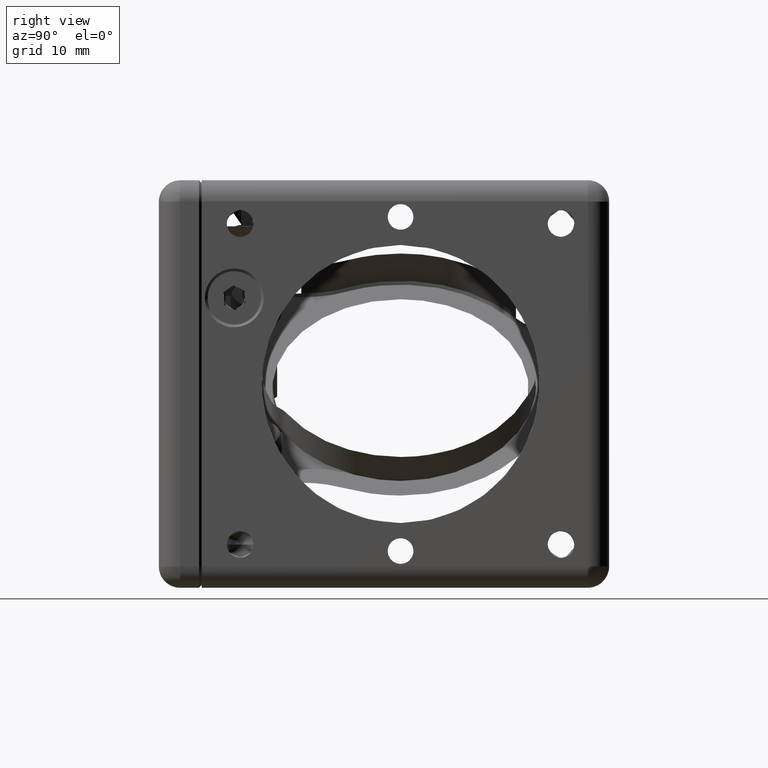
[diagram: clean part render]
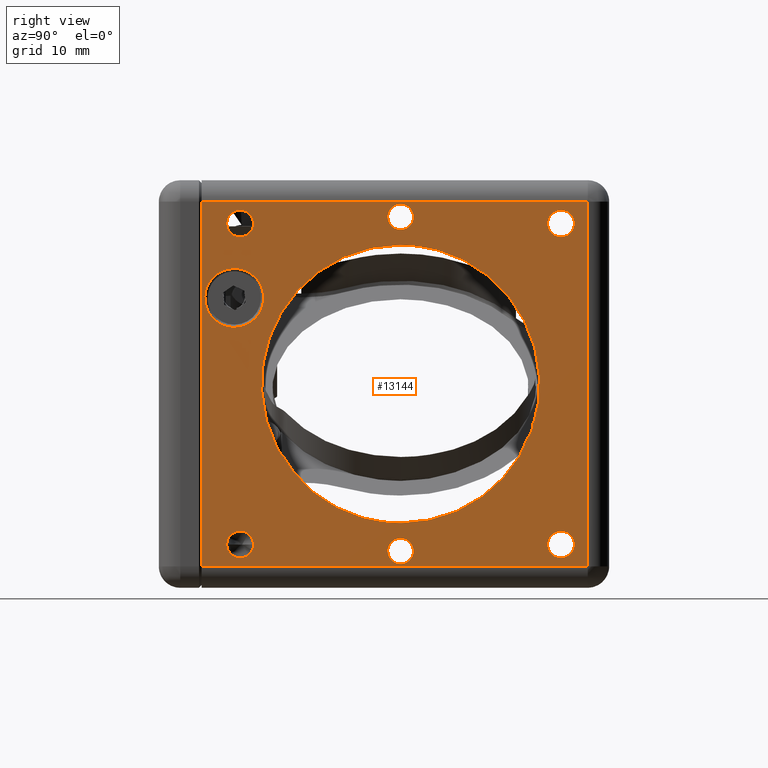
[diagram: same view with one face highlighted and labeled with its STEP entity id]
A machine part, right view. The second image highlights one B-rep face of the part: STEP entity #13144.
In plain terms, the highlighted face is a freeform B-spline surface patch.
Its self-contained STEP definition (entity closure, byte-faithful):
#40 = CARTESIAN_POINT ( 'NONE',  ( 19.04999986707461090, 3.098019014324461473, 6.112920640241477521 ) ) ;
#78 = ORIENTED_EDGE ( 'NONE', *, *, #1977, .F. ) ;
#80 = CARTESIAN_POINT ( 'NONE',  ( 19.05000000000000071, 19.40000000000000213, 15.62000000000000099 ) ) ;
#114 = CARTESIAN_POINT ( 'NONE',  ( 19.05000000000000071, 4.897910972433226817, 5.300000000000000711 ) ) ;
#176 =( BOUNDED_CURVE ( )  B_SPLINE_CURVE ( 3, ( #7310, #7550, #8832, #12180 ),
 .UNSPECIFIED., .F., .T. ) 
 B_SPLINE_CURVE_WITH_KNOTS ( ( 4, 4 ),
 ( 0.000000000000000000, 1.000000000000000000 ),
 .UNSPECIFIED. ) 
 CURVE ( )  GEOMETRIC_REPRESENTATION_ITEM ( )  RATIONAL_B_SPLINE_CURVE ( ( 1.000000000000000000, 0.3333333333331660042, 0.3333333333331660042, 1.000000000000000000 ) ) 
 REPRESENTATION_ITEM ( '' )  );
#188 = CARTESIAN_POINT ( 'NONE',  ( 19.04943811126134889, 4.380161409340550094, 5.377380616878197905 ) ) ;
#378 = CARTESIAN_POINT ( 'NONE',  ( 19.04861679086999970, 6.082759954205564590, 5.502779833323993230 ) ) ;
#386 = VERTEX_POINT ( 'NONE', #13449 ) ;
#421 = CARTESIAN_POINT ( 'NONE',  ( 19.04864654824011083, 3.995954247357201172, 5.511487269830947611 ) ) ;
#455 = CARTESIAN_POINT ( 'NONE',  ( 19.04863584893482908, 7.586728845092803653, 6.991693103098558737 ) ) ;
#531 = CARTESIAN_POINT ( 'NONE',  ( 19.04997547945868774, 6.869752765367521441, 5.987233722678755754 ) ) ;
#591 = CARTESIAN_POINT ( 'NONE',  ( 19.04928577054121419, 2.774380037230607332, 9.592874831375343803 ) ) ;
#611 = CARTESIAN_POINT ( 'NONE',  ( 19.04997547433630700, 7.796009776265294455, 7.890530415392072783 ) ) ;
#661 = VERTEX_POINT ( 'NONE', #4349 ) ;
#674 = B_SPLINE_CURVE_WITH_KNOTS ( 'NONE', 3,
 ( #11725, #4243, #4321, #2099, #10456, #9175, #6864, #7894, #12767, #7976, #10216, #12848, #13873, #10379, #11414, #3268, #14032, #831, #11646, #15068, #2967, #5657, #4165, #5424, #15377, #10297, #7817, #15224, #1857, #754, #6703, #4473, #14182, #15146, #8135, #12684, #15299, #4395, #1778, #6627, #11487, #11568, #5505, #9253, #591, #3192, #10534, #11959, #15625, #1063, #4796, #8451, #9409, #8211, #13319, #4550, #13080, #2412, #15702, #1224, #12039, #14578, #4711, #7250, #2330, #902, #14260, #1141, #8289, #3346, #15540, #4628, #5981, #5898, #12119, #9733, #5819, #9653, #2180, #11804, #5740, #4877, #9570, #14419, #7021, #11883, #13395, #15458, #6059, #3426, #984, #14342, #10697, #9490, #3590, #13158, #2255, #10931, #3506, #13237, #40, #7095, #10776, #3671, #14499, #8535, #10855, #6942, #10614, #8368, #7171, #8924, #7567, #14970, #5178, #3908, #2795, #1452, #8693, #13633, #13711, #2567, #421, #14741, #8848, #188, #11167, #114, #13482 ),
 .UNSPECIFIED., .F., .F.,
 ( 4, 2, 2, 2, 2, 2, 2, 2, 2, 1, 1, 2, 2, 2, 2, 1, 1, 1, 1, 2, 2, 2, 2, 2, 2, 2, 2, 2, 2, 1, 1, 2, 2, 2, 2, 1, 1, 1, 1, 2, 2, 2, 2, 2, 2, 2, 2, 2, 2, 1, 1, 2, 2, 2, 2, 1, 1, 1, 1, 2, 2, 2, 2, 1, 2, 2, 2, 2, 2, 1, 1, 2, 2, 2, 4 ),
 ( 0.000000000000000000, 0.03124999999998293726, 0.04687499999997425670, 0.05468749999996978806, 0.05859374999996758843, 0.06249999999996539574, 0.09374999999994695909, 0.1093749999999377304, 0.1171874999999331091, 0.1210937499999310968, 0.1230468749999307498, 0.1240234374999309858, 0.1249999999999312356, 0.1874999999999289735, 0.2187499999999278633, 0.2343749999999274747, 0.2421874999999273081, 0.2460937499999271971, 0.2480468749999271416, 0.2490234374999273637, 0.2499999999999276135, 0.2812499999999271139, 0.2968749999999268918, 0.3046874999999267808, 0.3085937499999268918, 0.3124999999999269473, 0.3437499999999285571, 0.3593749999999296119, 0.3671874999999306111, 0.3710937499999311107, 0.3730468749999306111, 0.3740234374999309996, 0.3749999999999313882, 0.4374999999999524825, 0.4687499999999629741, 0.4843749999999683031, 0.4921874999999706346, 0.4960937499999717448, 0.4980468749999723554, 0.4990234374999724110, 0.4999999999999723554, 0.5312499999999710232, 0.5468749999999703570, 0.5546874999999700240, 0.5585937499999698019, 0.5624999999999695799, 0.5937499999999660272, 0.6093749999999642508, 0.6171874999999636957, 0.6210937499999630296, 0.6230468749999632516, 0.6240234374999633626, 0.6249999999999634737, 0.6874999999999774625, 0.7187499999999845679, 0.7343749999999881206, 0.7421874999999900080, 0.7460937499999908962, 0.7480468749999914513, 0.7490234374999916733, 0.7499999999999918954, 0.7812499999999943379, 0.7968749999999955591, 0.8046874999999962252, 0.8085937499999963363, 0.8124999999999965583, 0.8437499999999985567, 0.8593749999999995559, 0.8671874999999998890, 0.8710937500000002220, 0.8730468750000002220, 0.8740234375000005551, 0.8750000000000007772, 0.9375000000000003331, 1.000000000000000000 ),
 .UNSPECIFIED. ) ;
#688 = CARTESIAN_POINT ( 'NONE',  ( 19.04937108888617558, 7.758480758903401941, 8.522679767899981940 ) ) ;
#719 = CARTESIAN_POINT ( 'NONE',  ( 19.05000000000000071, 4.349999999999999645, 15.00000000000000000 ) ) ;
#754 = CARTESIAN_POINT ( 'NONE',  ( 19.04999388760300150, 3.167407539884830481, 10.05483648186934964 ) ) ;
#768 = CARTESIAN_POINT ( 'NONE',  ( 19.04878263641271374, 7.682922672656817831, 8.844705857789028514 ) ) ;
#831 = CARTESIAN_POINT ( 'NONE',  ( 19.04861679086955917, 4.017240046087132477, 10.59722016679437573 ) ) ;
#902 = CARTESIAN_POINT ( 'NONE',  ( 19.04999962390708745, 2.300062368217583586, 8.069944392025167446 ) ) ;
#910 =( BOUNDED_CURVE ( )  B_SPLINE_CURVE ( 3, ( #11008, #3754, #8617, #6608 ),
 .UNSPECIFIED., .F., .F. ) 
 B_SPLINE_CURVE_WITH_KNOTS ( ( 4, 4 ),
 ( 0.000000000000000000, 1.000000000000000000 ),
 .UNSPECIFIED. ) 
 CURVE ( )  GEOMETRIC_REPRESENTATION_ITEM ( )  RATIONAL_B_SPLINE_CURVE ( ( 1.000000000000000000, 0.3333333333333329818, 0.3333333333333329818, 1.000000000000000000 ) ) 
 REPRESENTATION_ITEM ( '' )  );
#920 = CARTESIAN_POINT ( 'NONE',  ( 19.04999998250280413, 6.964226587509305233, 10.02486068427187149 ) ) ;
#939 = EDGE_CURVE ( 'NONE', #11145, #14442, #6646, .T. ) ;
#984 = CARTESIAN_POINT ( 'NONE',  ( 19.04864444234357279, 2.509449107466668494, 7.000878356694053117 ) ) ;
#1062 = ORIENTED_EDGE ( 'NONE', *, *, #13733, .F. ) ;
#1063 = CARTESIAN_POINT ( 'NONE',  ( 19.04859953023099450, 2.531307466915591942, 9.150553403581433543 ) ) ;
#1141 = CARTESIAN_POINT ( 'NONE',  ( 19.04999997488004126, 2.300004453179722574, 8.055698450661880727 ) ) ;
#1160 = CARTESIAN_POINT ( 'NONE',  ( 19.04999847815494363, 7.020512174068946010, 9.968272433880635219 ) ) ;
#1211 = ORIENTED_EDGE ( 'NONE', *, *, #13106, .F. ) ;
#1217 = EDGE_CURVE ( 'NONE', #2929, #4570, #1698, .T. ) ;
#1219 = CARTESIAN_POINT ( 'NONE',  ( 19.05000000000000071, 21.80000000000000071, -15.62000000000000099 ) ) ;
#1224 = CARTESIAN_POINT ( 'NONE',  ( 19.04977535610967365, 2.336315488206166080, 8.503131860456127455 ) ) ;
#1257 = CARTESIAN_POINT ( 'NONE',  ( 19.04863673309368366, 6.096152584884070080, 5.508233915722216878 ) ) ;
#1452 = CARTESIAN_POINT ( 'NONE',  ( 19.04859949369893357, 3.956655680808667253, 5.528184882426384839 ) ) ;
#1488 = CARTESIAN_POINT ( 'NONE',  ( 19.04897851526573405, 5.727874834933961878, 5.381990796689088974 ) ) ;
#1535 = B_SPLINE_SURFACE_WITH_KNOTS ( 'NONE', 1, 1, ( 
 ( #5678, #9062 ),
 ( #4207, #13920 ) ),
 .UNSPECIFIED., .F., .F., .F.,
 ( 2, 2 ),
 ( 2, 2 ),
 ( 0.000000000000000000, 1.000000000000000000 ),
 ( 0.000000000000000000, 1.000000000000000000 ),
 .UNSPECIFIED. ) ;
#1587 = FACE_BOUND ( 'NONE', #7717, .T. ) ;
#1638 = CARTESIAN_POINT ( 'NONE',  ( 19.04864201210133245, 7.591060604763359976, 9.097876480720207937 ) ) ;
#1667 = EDGE_CURVE ( 'NONE', #4354, #661, #2636, .T. ) ;
#1698 =( BOUNDED_CURVE ( )  B_SPLINE_CURVE ( 3, ( #9779, #11211, #4032, #14855 ),
 .UNSPECIFIED., .F., .T. ) 
 B_SPLINE_CURVE_WITH_KNOTS ( ( 4, 4 ),
 ( 0.000000000000000000, 1.000000000000000000 ),
 .UNSPECIFIED. ) 
 CURVE ( )  GEOMETRIC_REPRESENTATION_ITEM ( )  RATIONAL_B_SPLINE_CURVE ( ( 1.000000000000000000, 0.3333333333333329818, 0.3333333333333329818, 1.000000000000000000 ) ) 
 REPRESENTATION_ITEM ( '' )  );
#1713 = CARTESIAN_POINT ( 'NONE',  ( 19.04999997508845766, 6.990150368593027075, 6.101070544126463879 ) ) ;
#1752 = CARTESIAN_POINT ( 'NONE',  ( 19.05000000000000071, 1.999999999999944933, 17.05000000000000071 ) ) ;
#1778 = CARTESIAN_POINT ( 'NONE',  ( 19.04967235771179546, 2.903468310556810650, 9.769343564325705387 ) ) ;
#1796 = CARTESIAN_POINT ( 'NONE',  ( 19.04999848077137869, 6.963685059447638714, 6.075014362308000848 ) ) ;
#1799 = EDGE_LOOP ( 'NONE', ( #4380, #3040 ) ) ;
#1857 = CARTESIAN_POINT ( 'NONE',  ( 19.04997547945506398, 3.230247234634628040, 10.11276627731843369 ) ) ;
#1875 = CARTESIAN_POINT ( 'NONE',  ( 19.04999998089872548, 7.799999980898670415, 8.096811197499311774 ) ) ;
#1883 = CARTESIAN_POINT ( 'NONE',  ( 19.05000000000000071, 6.849999999999890399, -14.99999999999956124 ) ) ;
#1955 = CARTESIAN_POINT ( 'NONE',  ( 19.04931259052417758, 7.752775179646571146, 8.553963142134406894 ) ) ;
#1977 = EDGE_CURVE ( 'NONE', #5232, #3643, #10777, .T. ) ;
#2099 = CARTESIAN_POINT ( 'NONE',  ( 19.04975038916095187, 4.794907133003460054, 10.78824959645589843 ) ) ;
#2118 = CARTESIAN_POINT ( 'NONE',  ( 19.04975036291515167, 6.811779479519838532, 10.16171380548089509 ) ) ;
#2180 = CARTESIAN_POINT ( 'NONE',  ( 19.04928604715173535, 2.349887537042180785, 7.532014886327639047 ) ) ;
#2192 = CARTESIAN_POINT ( 'NONE',  ( 19.04999999999979110, 6.849999999999968558, 12.50000000000020250 ) ) ;
#2198 = CARTESIAN_POINT ( 'NONE',  ( 19.04994387987789395, 7.139882995442503599, 9.837872293788437972 ) ) ;
#2240 = EDGE_CURVE ( 'NONE', #4303, #5638, #4066, .T. ) ;
#2255 = CARTESIAN_POINT ( 'NONE',  ( 19.04997546999905467, 3.002722374863786570, 6.213091202360320864 ) ) ;
#2330 = CARTESIAN_POINT ( 'NONE',  ( 19.04999847935262025, 2.300249483436033859, 8.089887732640809404 ) ) ;
#2412 = CARTESIAN_POINT ( 'NONE',  ( 19.04910105242139196, 2.443078559368332847, 8.940082145578971407 ) ) ;
#2526 = CARTESIAN_POINT ( 'NONE',  ( 19.04943823290890847, 6.402979695893735723, 5.649735252363382365 ) ) ;
#2567 = CARTESIAN_POINT ( 'NONE',  ( 19.04864189320890944, 3.993707273458299234, 5.512426470878033946 ) ) ;
#2636 =( BOUNDED_CURVE ( )  B_SPLINE_CURVE ( 3, ( #11851, #14384, #9296, #11927 ),
 .UNSPECIFIED., .F., .F. ) 
 B_SPLINE_CURVE_WITH_KNOTS ( ( 4, 4 ),
 ( 0.000000000000000000, 1.000000000000000000 ),
 .UNSPECIFIED. ) 
 CURVE ( )  GEOMETRIC_REPRESENTATION_ITEM ( )  RATIONAL_B_SPLINE_CURVE ( ( 1.000000000000000000, 0.3333333333333329818, 0.3333333333333329818, 1.000000000000000000 ) ) 
 REPRESENTATION_ITEM ( '' )  );
#2659 = CARTESIAN_POINT ( 'NONE',  ( 19.05000000000000071, 34.35000000000000142, 15.00000000000000000 ) ) ;
#2795 = CARTESIAN_POINT ( 'NONE',  ( 19.04859634725416129, 3.943859191291138266, 5.533757557756590728 ) ) ;
#2830 = CARTESIAN_POINT ( 'NONE',  ( 19.05000000059691345, 7.800000000596865490, 8.048537150078148628 ) ) ;
#2831 = CARTESIAN_POINT ( 'NONE',  ( 19.05000000000000071, 1.999999999999944933, 17.05000000000000071 ) ) ;
#2907 = CARTESIAN_POINT ( 'NONE',  ( 19.04897213012808166, 7.717342211541247110, 8.731196797701532120 ) ) ;
#2929 = VERTEX_POINT ( 'NONE', #15463 ) ;
#2937 = CARTESIAN_POINT ( 'NONE',  ( 19.05000000000000071, 38.10000000000000142, -17.05000000000000071 ) ) ;
#2967 = CARTESIAN_POINT ( 'NONE',  ( 19.04864279465474652, 4.001304786055429830, 10.59072358561536120 ) ) ;
#2984 = CARTESIAN_POINT ( 'NONE',  ( 19.04863271129871549, 7.639758563377183620, 8.972030731387674152 ) ) ;
#2992 = CARTESIAN_POINT ( 'NONE',  ( 19.05000000000000071, 4.349999999999900169, -14.99999999999979927 ) ) ;
#3040 = ORIENTED_EDGE ( 'NONE', *, *, #1217, .F. ) ;
#3062 = CARTESIAN_POINT ( 'NONE',  ( 19.04943822287318866, 7.710015610723918833, 7.331447353447526183 ) ) ;
#3104 = CARTESIAN_POINT ( 'NONE',  ( 19.04999999999979110, 36.84999999999993037, 17.50000000000018474 ) ) ;
#3137 = CARTESIAN_POINT ( 'NONE',  ( 19.04910105242591811, 7.656921440635596987, 7.159917854419028949 ) ) ;
#3192 = CARTESIAN_POINT ( 'NONE',  ( 19.04897434301594927, 2.682876109479437332, 9.455394607497314752 ) ) ;
#3268 = CARTESIAN_POINT ( 'NONE',  ( 19.04860370247994439, 4.044423636469463901, 10.60809816216839252 ) ) ;
#3285 = CARTESIAN_POINT ( 'NONE',  ( 19.04910097801793611, 5.907857957707722818, 10.67026905575054840 ) ) ;
#3323 = VERTEX_POINT ( 'NONE', #6675 ) ;
#3326 = CARTESIAN_POINT ( 'NONE',  ( 19.05000000000001492, 19.39999999999990976, 13.21999999999999353 ) ) ;
#3346 = CARTESIAN_POINT ( 'NONE',  ( 19.04999998089988011, 2.300000019100027604, 8.003188805770168557 ) ) ;
#3362 = CARTESIAN_POINT ( 'NONE',  ( 19.04977534763213498, 7.276786563319442180, 9.665803384612170035 ) ) ;
#3364 = B_SPLINE_CURVE_WITH_KNOTS ( 'NONE', 1,
 ( #2937, #7785 ),
 .UNSPECIFIED., .F., .F.,
 ( 2, 2 ),
 ( 0.000000000000000000, 1.000000000000000000 ),
 .UNSPECIFIED. ) ;
#3369 =( BOUNDED_CURVE ( )  B_SPLINE_CURVE ( 3, ( #8460, #10787, #8218, #11892 ),
 .UNSPECIFIED., .F., .T. ) 
 B_SPLINE_CURVE_WITH_KNOTS ( ( 4, 4 ),
 ( 0.000000000000000000, 1.000000000000000000 ),
 .UNSPECIFIED. ) 
 CURVE ( )  GEOMETRIC_REPRESENTATION_ITEM ( )  RATIONAL_B_SPLINE_CURVE ( ( 1.000000000000000000, 0.3333333333333329818, 0.3333333333333329818, 1.000000000000000000 ) ) 
 REPRESENTATION_ITEM ( '' )  );
#3426 = CARTESIAN_POINT ( 'NONE',  ( 19.04864660839693258, 2.509773020958392387, 7.000092252604933840 ) ) ;
#3452 = EDGE_CURVE ( 'NONE', #6903, #11145, #3364, .T. ) ;
#3471 = CARTESIAN_POINT ( 'NONE',  ( 19.05000000000000071, 34.35000000000000142, -14.99999999999979927 ) ) ;
#3506 = CARTESIAN_POINT ( 'NONE',  ( 19.04999847815308200, 3.079487825932283318, 6.131727566120598105 ) ) ;
#3536 = CARTESIAN_POINT ( 'NONE',  ( 19.05000000000000071, 21.80000000000000071, 15.62000000000000099 ) ) ;
#3590 = CARTESIAN_POINT ( 'NONE',  ( 19.04985962233695318, 2.876611064517532235, 6.363068999065001563 ) ) ;
#3643 = VERTEX_POINT ( 'NONE', #80 ) ;
#3667 = CARTESIAN_POINT ( 'NONE',  ( 19.05000000000000071, 19.40000000000000213, -15.62000000000000099 ) ) ;
#3671 = CARTESIAN_POINT ( 'NONE',  ( 19.04999998250502813, 3.135773412124768011, 6.075139316090750086 ) ) ;
#3705 = CARTESIAN_POINT ( 'NONE',  ( 19.04948127747510256, 5.463292283620305945, 5.331592119606763269 ) ) ;
#3754 = CARTESIAN_POINT ( 'NONE',  ( 19.05000000000000782, 46.59999999999995168, -13.00000000000000533 ) ) ;
#3756 = EDGE_CURVE ( 'NONE', #14700, #4696, #4845, .T. ) ;
#3868 = CARTESIAN_POINT ( 'NONE',  ( 19.04967238577374289, 5.353924800319250998, 5.316632255926482920 ) ) ;
#3908 = CARTESIAN_POINT ( 'NONE',  ( 19.04860378829812717, 3.901271882941180547, 5.552758913336253599 ) ) ;
#3943 = CARTESIAN_POINT ( 'NONE',  ( 19.05000000000000071, 5.049999999999900346, 5.299999999999999822 ) ) ;
#3979 = CARTESIAN_POINT ( 'NONE',  ( 19.05000000000000071, 38.10000000000000142, 17.05000000000000071 ) ) ;
#4032 = CARTESIAN_POINT ( 'NONE',  ( 19.05000000000010019, 34.35000000000002984, -12.49999999999979750 ) ) ;
#4066 =( BOUNDED_CURVE ( )  B_SPLINE_CURVE ( 3, ( #9263, #4483, #2192, #15236 ),
 .UNSPECIFIED., .F., .F. ) 
 B_SPLINE_CURVE_WITH_KNOTS ( ( 4, 4 ),
 ( 0.000000000000000000, 1.000000000000000000 ),
 .UNSPECIFIED. ) 
 CURVE ( )  GEOMETRIC_REPRESENTATION_ITEM ( )  RATIONAL_B_SPLINE_CURVE ( ( 1.000000000000000000, 0.3333333333333329818, 0.3333333333333329818, 1.000000000000000000 ) ) 
 REPRESENTATION_ITEM ( '' )  );
#4099 = CARTESIAN_POINT ( 'NONE',  ( 19.04860217933362421, 7.573965098630376147, 6.961632845287009097 ) ) ;
#4165 = CARTESIAN_POINT ( 'NONE',  ( 19.04864444215057517, 4.000461405038350016, 10.59037818529374597 ) ) ;
#4183 = CARTESIAN_POINT ( 'NONE',  ( 19.04967235771015766, 7.196531691323230895, 6.330656438041468270 ) ) ;
#4205 = CARTESIAN_POINT ( 'NONE',  ( 19.05000000000000071, 21.80000000000000071, 15.62000000000000099 ) ) ;
#4207 = CARTESIAN_POINT ( 'NONE',  ( 19.05000000000000071, 38.10000000000000142, -17.05000000000000071 ) ) ;
#4243 = CARTESIAN_POINT ( 'NONE',  ( 19.04999999999999716, 4.996484057554225089, 10.80000000000000071 ) ) ;
#4258 = CARTESIAN_POINT ( 'NONE',  ( 19.04999847935357593, 7.799750516564784242, 8.010112267359117411 ) ) ;
#4303 = VERTEX_POINT ( 'NONE', #719 ) ;
#4321 = CARTESIAN_POINT ( 'NONE',  ( 19.04993759729023850, 4.927182347930290085, 10.79861723339220525 ) ) ;
#4335 = CARTESIAN_POINT ( 'NONE',  ( 19.04999962462792595, 6.979144354860691735, 6.090161453684364012 ) ) ;
#4349 = CARTESIAN_POINT ( 'NONE',  ( 19.05000000000000071, 20.60000000000000142, -13.00000000000000000 ) ) ;
#4354 = VERTEX_POINT ( 'NONE', #11461 ) ;
#4380 = ORIENTED_EDGE ( 'NONE', *, *, #9531, .F. ) ;
#4381 = CARTESIAN_POINT ( 'NONE',  ( 19.05000000000000071, 36.85000000000000142, 15.00000000000000000 ) ) ;
#4391 = ORIENTED_EDGE ( 'NONE', *, *, #2240, .F. ) ;
#4395 = CARTESIAN_POINT ( 'NONE',  ( 19.04975035854791798, 2.935040566656573091, 9.807858910214951820 ) ) ;
#4413 = CARTESIAN_POINT ( 'NONE',  ( 19.04993756863831678, 7.798991181897994451, 8.165430737244459891 ) ) ;
#4473 = CARTESIAN_POINT ( 'NONE',  ( 19.04999962462741436, 3.120855645139492207, 10.00983854631526171 ) ) ;
#4483 = CARTESIAN_POINT ( 'NONE',  ( 19.04999999999979110, 4.350000000000004086, 12.50000000000020250 ) ) ;
#4492 = FACE_OUTER_BOUND ( 'NONE', #14753, .T. ) ;
#4512 = ORIENTED_EDGE ( 'NONE', *, *, #3756, .F. ) ;
#4550 = CARTESIAN_POINT ( 'NONE',  ( 19.04864674562168148, 2.511310910646617600, 9.103621201027619847 ) ) ;
#4567 = CARTESIAN_POINT ( 'NONE',  ( 19.04993757104444185, 6.915372200268711467, 10.07258336999052339 ) ) ;
#4570 = VERTEX_POINT ( 'NONE', #5624 ) ;
#4604 = CARTESIAN_POINT ( 'NONE',  ( 19.05000000000001492, 21.79999999999991189, 13.21999999999999353 ) ) ;
#4617 = CARTESIAN_POINT ( 'NONE',  ( 19.05000000000000071, 6.850000000000000533, 15.00000000000000000 ) ) ;
#4628 = CARTESIAN_POINT ( 'NONE',  ( 19.04975036051078163, 2.311286182346134144, 7.799792674801262926 ) ) ;
#4696 = VERTEX_POINT ( 'NONE', #4840 ) ;
#4711 = CARTESIAN_POINT ( 'NONE',  ( 19.04997547433281468, 2.303990223738020315, 8.209469584607536063 ) ) ;
#4728 = CARTESIAN_POINT ( 'NONE',  ( 19.04910104676970661, 7.517226983444332156, 9.277334383940036844 ) ) ;
#4796 = CARTESIAN_POINT ( 'NONE',  ( 19.04860217933556399, 2.526034901167934610, 9.138367154249349866 ) ) ;
#4815 = CARTESIAN_POINT ( 'NONE',  ( 19.04864654823984083, 6.104045752620087306, 10.58851273017810612 ) ) ;
#4840 = CARTESIAN_POINT ( 'NONE',  ( 19.05000000000000071, 4.349999999999900169, -14.99999999999979927 ) ) ;
#4845 =( BOUNDED_CURVE ( )  B_SPLINE_CURVE ( 3, ( #1883, #15093, #13676, #2992 ),
 .UNSPECIFIED., .F., .F. ) 
 B_SPLINE_CURVE_WITH_KNOTS ( ( 4, 4 ),
 ( 0.000000000000000000, 1.000000000000000000 ),
 .UNSPECIFIED. ) 
 CURVE ( )  GEOMETRIC_REPRESENTATION_ITEM ( )  RATIONAL_B_SPLINE_CURVE ( ( 1.000000000000000000, 0.3333333333333329818, 0.3333333333333329818, 1.000000000000000000 ) ) 
 REPRESENTATION_ITEM ( '' )  );
#4877 = CARTESIAN_POINT ( 'NONE',  ( 19.04863271130433233, 2.460241437085632921, 7.127969267295414468 ) ) ;
#5042 =( BOUNDED_CURVE ( )  B_SPLINE_CURVE ( 3, ( #11630, #3326, #4604, #14084 ),
 .UNSPECIFIED., .F., .T. ) 
 B_SPLINE_CURVE_WITH_KNOTS ( ( 4, 4 ),
 ( 0.000000000000000000, 1.000000000000000000 ),
 .UNSPECIFIED. ) 
 CURVE ( )  GEOMETRIC_REPRESENTATION_ITEM ( )  RATIONAL_B_SPLINE_CURVE ( ( 1.000000000000000000, 0.3333333333333329818, 0.3333333333333329818, 1.000000000000000000 ) ) 
 REPRESENTATION_ITEM ( '' )  );
#5084 = ORIENTED_EDGE ( 'NONE', *, *, #939, .F. ) ;
#5086 = FACE_BOUND ( 'NONE', #15214, .T. ) ;
#5139 = CARTESIAN_POINT ( 'NONE',  ( 19.04860370248074730, 6.055576364049540139, 5.491901838035227357 ) ) ;
#5178 = CARTESIAN_POINT ( 'NONE',  ( 19.04863125616509834, 3.867278545369007059, 5.568447669977730108 ) ) ;
#5215 = CARTESIAN_POINT ( 'NONE',  ( 19.04953197967677170, 5.434974835114733338, 5.327416061262820968 ) ) ;
#5232 = VERTEX_POINT ( 'NONE', #4205 ) ;
#5290 = CARTESIAN_POINT ( 'NONE',  ( 19.04939936243798115, 7.290577588189775859, 6.456501186459718156 ) ) ;
#5366 = CARTESIAN_POINT ( 'NONE',  ( 19.04861319923007557, 7.598608513100741035, 9.079322157500918422 ) ) ;
#5402 = ORIENTED_EDGE ( 'NONE', *, *, #13813, .F. ) ;
#5424 = CARTESIAN_POINT ( 'NONE',  ( 19.04910105911165275, 3.849350522021382393, 10.52828024676313312 ) ) ;
#5443 = CARTESIAN_POINT ( 'NONE',  ( 19.04948126135840170, 7.768579376031131467, 8.462193557394135368 ) ) ;
#5505 = CARTESIAN_POINT ( 'NONE',  ( 19.04937108828354297, 2.800497116837343370, 9.630831798735513871 ) ) ;
#5520 = CARTESIAN_POINT ( 'NONE',  ( 19.04975036050903014, 7.788713817206626366, 8.300207330072854717 ) ) ;
#5595 = CARTESIAN_POINT ( 'NONE',  ( 19.04999986783928634, 6.985750561502381828, 6.096700573261744971 ) ) ;
#5605 = CARTESIAN_POINT ( 'NONE',  ( 19.05000000000001492, 21.79999999999991189, 18.01999999999999957 ) ) ;
#5624 = CARTESIAN_POINT ( 'NONE',  ( 19.05000000000000071, 34.35000000000000142, -14.99999999999979927 ) ) ;
#5631 =( BOUNDED_CURVE ( )  B_SPLINE_CURVE ( 3, ( #4381, #3104, #6848, #7958 ),
 .UNSPECIFIED., .F., .F. ) 
 B_SPLINE_CURVE_WITH_KNOTS ( ( 4, 4 ),
 ( 0.000000000000000000, 1.000000000000000000 ),
 .UNSPECIFIED. ) 
 CURVE ( )  GEOMETRIC_REPRESENTATION_ITEM ( )  RATIONAL_B_SPLINE_CURVE ( ( 1.000000000000000000, 0.3333333333333330373, 0.3333333333333330373, 1.000000000000000000 ) ) 
 REPRESENTATION_ITEM ( '' )  );
#5638 = VERTEX_POINT ( 'NONE', #8559 ) ;
#5657 = CARTESIAN_POINT ( 'NONE',  ( 19.04864700434999492, 3.999673123998137569, 10.59005405173104819 ) ) ;
#5678 = CARTESIAN_POINT ( 'NONE',  ( 19.05000000000000071, 1.999999999999899858, -17.05000000000000071 ) ) ;
#5740 = CARTESIAN_POINT ( 'NONE',  ( 19.04878263641830927, 2.417077327744692194, 7.255294140861686003 ) ) ;
#5757 = CARTESIAN_POINT ( 'NONE',  ( 19.04997547000575508, 7.097277625141244606, 9.886908797643940261 ) ) ;
#5772 = CARTESIAN_POINT ( 'NONE',  ( 19.05000000000000071, 1.999999999999914957, -17.05000000000000071 ) ) ;
#5786 = CARTESIAN_POINT ( 'NONE',  ( 19.05000000000000071, 36.85000000000000142, -14.99999999999979927 ) ) ;
#5819 = CARTESIAN_POINT ( 'NONE',  ( 19.04937108888671915, 2.341519240836834825, 7.577320233572587327 ) ) ;
#5834 = CARTESIAN_POINT ( 'NONE',  ( 19.04928616841325351, 6.593050691107618988, 10.32550291365776118 ) ) ;
#5872 = CARTESIAN_POINT ( 'NONE',  ( 19.05000000000000071, 5.049999999999900346, 10.80000000000000071 ) ) ;
#5898 = CARTESIAN_POINT ( 'NONE',  ( 19.04953196057667242, 2.327174758243979902, 7.666691584347035793 ) ) ;
#5914 = CARTESIAN_POINT ( 'NONE',  ( 19.04999997470412509, 6.998264715045203310, 9.990817200694813494 ) ) ;
#5956 = CARTESIAN_POINT ( 'NONE',  ( 19.04999999999989058, 19.39999999999990976, -13.21999999999999353 ) ) ;
#5981 = CARTESIAN_POINT ( 'NONE',  ( 19.04967235951109572, 2.316220603580917636, 7.749575563479803364 ) ) ;
#5996 = CARTESIAN_POINT ( 'NONE',  ( 19.04999962329859642, 7.007550576190956448, 9.981461205278053583 ) ) ;
#6059 = CARTESIAN_POINT ( 'NONE',  ( 19.04864201210182273, 2.508939395279136786, 7.002123519175144750 ) ) ;
#6095 = CARTESIAN_POINT ( 'NONE',  ( 19.04864228900517276, 5.977234094099964423, 5.462065674042500873 ) ) ;
#6196 = FACE_BOUND ( 'NONE', #11062, .T. ) ;
#6330 = CARTESIAN_POINT ( 'NONE',  ( 19.04879221411916390, 5.846090717539198955, 5.417391210767923404 ) ) ;
#6485 = CARTESIAN_POINT ( 'NONE',  ( 19.04864660839667323, 7.590226979063068313, 9.099907747342138364 ) ) ;
#6562 = CARTESIAN_POINT ( 'NONE',  ( 19.04862264904732072, 7.583696891784267535, 6.984474771059931086 ) ) ;
#6608 = CARTESIAN_POINT ( 'NONE',  ( 19.05000000000000071, 20.60000000000000142, 13.00000000000000000 ) ) ;
#6627 = CARTESIAN_POINT ( 'NONE',  ( 19.04953195926809428, 2.853160051390612129, 9.703656815373964406 ) ) ;
#6645 = CARTESIAN_POINT ( 'NONE',  ( 19.04999997959011182, 7.029906693193979095, 6.140819425531980791 ) ) ;
#6646 = B_SPLINE_CURVE_WITH_KNOTS ( 'NONE', 1,
 ( #15268, #6827 ),
 .UNSPECIFIED., .F., .F.,
 ( 2, 2 ),
 ( 0.000000000000000000, 1.000000000000000000 ),
 .UNSPECIFIED. ) ;
#6675 = CARTESIAN_POINT ( 'NONE',  ( 19.05000000000000071, 5.049999999999900346, 5.299999999999999822 ) ) ;
#6703 = CARTESIAN_POINT ( 'NONE',  ( 19.04999848077039104, 3.136314940552869412, 10.02498563769125184 ) ) ;
#6721 = CARTESIAN_POINT ( 'NONE',  ( 19.04999962390758483, 7.799937631782765557, 8.030055607974798448 ) ) ;
#6796 = CARTESIAN_POINT ( 'NONE',  ( 19.04928604715219720, 7.750112462935001112, 8.567985113788793683 ) ) ;
#6827 = CARTESIAN_POINT ( 'NONE',  ( 19.05000000000000071, 1.999999999999944933, 17.05000000000000071 ) ) ;
#6848 = CARTESIAN_POINT ( 'NONE',  ( 19.04999999999979110, 34.35000000000002984, 17.50000000000018474 ) ) ;
#6864 = CARTESIAN_POINT ( 'NONE',  ( 19.04948127747509901, 4.636707715704702970, 10.76840788028901130 ) ) ;
#6881 = CARTESIAN_POINT ( 'NONE',  ( 19.04943811126121034, 5.719838590658981481, 10.72261938312173157 ) ) ;
#6903 = VERTEX_POINT ( 'NONE', #9820 ) ;
#6942 = CARTESIAN_POINT ( 'NONE',  ( 19.04953196218180622, 3.394964951850207413, 5.854190099533200353 ) ) ;
#6959 = CARTESIAN_POINT ( 'NONE',  ( 19.04878118128000608, 6.351693515325218975, 10.47264831718906919 ) ) ;
#7021 = CARTESIAN_POINT ( 'NONE',  ( 19.04860031221459238, 2.494798226942601893, 7.037139038550428438 ) ) ;
#7036 = CARTESIAN_POINT ( 'NONE',  ( 19.04862134353061975, 6.118195745305863298, 10.58257333225295227 ) ) ;
#7095 = CARTESIAN_POINT ( 'NONE',  ( 19.04999997470384443, 3.101735284954839855, 6.109182799305371780 ) ) ;
#7114 = CARTESIAN_POINT ( 'NONE',  ( 19.04859949369929595, 6.143344318890259892, 10.57181511770410332 ) ) ;
#7125 = CARTESIAN_POINT ( 'NONE',  ( 19.05000000000000071, 36.85000000000000142, 15.00000000000000000 ) ) ;
#7171 = CARTESIAN_POINT ( 'NONE',  ( 19.04931259091320683, 3.495174292798252758, 5.782514246472439723 ) ) ;
#7244 = CARTESIAN_POINT ( 'NONE',  ( 19.04999999999989058, 21.79999999999991189, -18.01999999999999957 ) ) ;
#7249 = VERTEX_POINT ( 'NONE', #2659 ) ;
#7250 = CARTESIAN_POINT ( 'NONE',  ( 19.04999388485896006, 2.300997879113317879, 8.129767248517790534 ) ) ;
#7287 = CARTESIAN_POINT ( 'NONE',  ( 19.04937109769067760, 5.522982069639912339, 5.341572709883709358 ) ) ;
#7310 = CARTESIAN_POINT ( 'NONE',  ( 19.05000000000000071, 4.349999999999900169, -14.99999999999979927 ) ) ;
#7373 = CARTESIAN_POINT ( 'NONE',  ( 19.04977536615218270, 6.629254954856995674, 5.797152483683492896 ) ) ;
#7550 = CARTESIAN_POINT ( 'NONE',  ( 19.05000000000008953, 4.349999999999903721, -17.50000000000100542 ) ) ;
#7567 = CARTESIAN_POINT ( 'NONE',  ( 19.04897116003892776, 3.646012270002090272, 5.681939716828142473 ) ) ;
#7660 = ORIENTED_EDGE ( 'NONE', *, *, #9113, .F. ) ;
#7678 = CARTESIAN_POINT ( 'NONE',  ( 19.04860031221141980, 7.605201773342378679, 9.062860960723687853 ) ) ;
#7717 = EDGE_LOOP ( 'NONE', ( #10474, #8046 ) ) ;
#7753 = CARTESIAN_POINT ( 'NONE',  ( 19.04859731734310557, 7.610182011357278675, 9.050244938257119287 ) ) ;
#7785 = CARTESIAN_POINT ( 'NONE',  ( 19.05000000000000071, 1.999999999999914957, -17.05000000000000071 ) ) ;
#7817 = CARTESIAN_POINT ( 'NONE',  ( 19.04985963931916260, 3.395728028893302941, 10.24865733847307325 ) ) ;
#7835 = CARTESIAN_POINT ( 'NONE',  ( 19.04862174141845088, 7.595530704372100317, 9.086936860328657772 ) ) ;
#7894 = CARTESIAN_POINT ( 'NONE',  ( 19.04939937391854698, 4.592194928356873262, 10.76105838905286483 ) ) ;
#7911 = CARTESIAN_POINT ( 'NONE',  ( 19.04999388760495904, 6.932592460116283384, 6.045163518129169411 ) ) ;
#7958 = CARTESIAN_POINT ( 'NONE',  ( 19.05000000000000071, 34.35000000000000142, 15.00000000000000000 ) ) ;
#7976 = CARTESIAN_POINT ( 'NONE',  ( 19.04931259515028685, 4.545971572903132696, 10.75276230581942016 ) ) ;
#7994 = CARTESIAN_POINT ( 'NONE',  ( 19.04993756667540694, 7.077804517830251108, 6.190391779866165400 ) ) ;
#8046 = ORIENTED_EDGE ( 'NONE', *, *, #12373, .F. ) ;
#8135 = CARTESIAN_POINT ( 'NONE',  ( 19.05000000063777321, 3.106561446844505525, 9.995648744272553898 ) ) ;
#8211 = CARTESIAN_POINT ( 'NONE',  ( 19.04863584893530515, 2.513271154857638745, 9.108306896784149842 ) ) ;
#8218 = CARTESIAN_POINT ( 'NONE',  ( 19.04999999999980531, 36.84999999999993747, 12.50000000000020250 ) ) ;
#8227 = CARTESIAN_POINT ( 'NONE',  ( 19.05000000054678111, 6.995491056411487385, 9.993596240887731241 ) ) ;
#8246 = ORIENTED_EDGE ( 'NONE', *, *, #11296, .F. ) ;
#8283 = CARTESIAN_POINT ( 'NONE',  ( 19.05000000000000071, 6.849999999999890399, -14.99999999999956124 ) ) ;
#8289 = CARTESIAN_POINT ( 'NONE',  ( 19.05000000059687792, 2.299999999403036011, 8.051462849819685630 ) ) ;
#8290 =( BOUNDED_CURVE ( )  B_SPLINE_CURVE ( 3, ( #3667, #8529, #7244, #1219 ),
 .UNSPECIFIED., .F., .T. ) 
 B_SPLINE_CURVE_WITH_KNOTS ( ( 4, 4 ),
 ( 0.000000000000000000, 1.000000000000000000 ),
 .UNSPECIFIED. ) 
 CURVE ( )  GEOMETRIC_REPRESENTATION_ITEM ( )  RATIONAL_B_SPLINE_CURVE ( ( 1.000000000000000000, 0.3333333333333329818, 0.3333333333333329818, 1.000000000000000000 ) ) 
 REPRESENTATION_ITEM ( '' )  );
#8320 = CARTESIAN_POINT ( 'NONE',  ( 19.05000000000001492, 19.39999999999990976, 18.01999999999999957 ) ) ;
#8368 = CARTESIAN_POINT ( 'NONE',  ( 19.04937108962658598, 3.468911574325041158, 5.800676617659632051 ) ) ;
#8408 = ORIENTED_EDGE ( 'NONE', *, *, #14886, .F. ) ;
#8451 = CARTESIAN_POINT ( 'NONE',  ( 19.04861444397951331, 2.519343806710534484, 9.122703513837624456 ) ) ;
#8460 = CARTESIAN_POINT ( 'NONE',  ( 19.05000000000000071, 34.35000000000000142, 15.00000000000000000 ) ) ;
#8529 = CARTESIAN_POINT ( 'NONE',  ( 19.04999999999989058, 19.39999999999990976, -18.01999999999999957 ) ) ;
#8535 = CARTESIAN_POINT ( 'NONE',  ( 19.04975036291849477, 3.288220519907619099, 5.938286194992166145 ) ) ;
#8549 = VERTEX_POINT ( 'NONE', #5872 ) ;
#8559 = CARTESIAN_POINT ( 'NONE',  ( 19.05000000000000071, 6.850000000000000533, 15.00000000000000000 ) ) ;
#8569 = CARTESIAN_POINT ( 'NONE',  ( 19.04864444215049701, 6.099538594961446236, 5.509621814706330944 ) ) ;
#8617 = CARTESIAN_POINT ( 'NONE',  ( 19.05000000000000782, 46.59999999999995168, 13.00000000000000533 ) ) ;
#8655 = ORIENTED_EDGE ( 'NONE', *, *, #11004, .F. ) ;
#8693 = CARTESIAN_POINT ( 'NONE',  ( 19.04861265355520672, 3.973768391918281573, 5.520842912600733676 ) ) ;
#8726 = CARTESIAN_POINT ( 'NONE',  ( 19.04939937391854698, 5.507805071188458967, 5.338941610869987642 ) ) ;
#8826 = ORIENTED_EDGE ( 'NONE', *, *, #1667, .F. ) ;
#8832 = CARTESIAN_POINT ( 'NONE',  ( 19.05000000000008953, 6.850000000001148059, -17.50000000000040501 ) ) ;
#8848 = CARTESIAN_POINT ( 'NONE',  ( 19.04910097801814928, 4.192142042291699511, 5.429730944249341995 ) ) ;
#8924 = CARTESIAN_POINT ( 'NONE',  ( 19.04928616841333877, 3.506949308937123977, 5.774497086312123884 ) ) ;
#8950 = EDGE_CURVE ( 'NONE', #7249, #11685, #3369, .T. ) ;
#8958 = CARTESIAN_POINT ( 'NONE',  ( 19.04999388486081457, 7.799002120888397727, 7.970232751482045686 ) ) ;
#9037 = CARTESIAN_POINT ( 'NONE',  ( 19.04939936317406435, 7.761139392953907645, 8.507332031121579874 ) ) ;
#9062 = CARTESIAN_POINT ( 'NONE',  ( 19.05000000000000071, 1.999999999999909850, 17.05000000000000071 ) ) ;
#9112 = CARTESIAN_POINT ( 'NONE',  ( 19.04864444225505693, 7.588368166639440915, 6.995608790469733052 ) ) ;
#9113 = EDGE_CURVE ( 'NONE', #5638, #4303, #14379, .T. ) ;
#9175 = CARTESIAN_POINT ( 'NONE',  ( 19.04953197967678591, 4.665025164091867182, 10.77258393862410379 ) ) ;
#9193 = CARTESIAN_POINT ( 'NONE',  ( 19.04864228330951192, 7.587919402450863160, 6.994537777227526121 ) ) ;
#9253 = CARTESIAN_POINT ( 'NONE',  ( 19.04931259020753842, 2.782475810947473427, 9.604768402977246211 ) ) ;
#9263 = CARTESIAN_POINT ( 'NONE',  ( 19.05000000000000071, 4.349999999999999645, 15.00000000000000000 ) ) ;
#9272 = CARTESIAN_POINT ( 'NONE',  ( 19.04931259020724710, 7.317524189359326137, 6.495231597473424934 ) ) ;
#9296 = CARTESIAN_POINT ( 'NONE',  ( 19.04999999999989058, -5.400000000000006573, -13.00000000000000533 ) ) ;
#9305 = CARTESIAN_POINT ( 'NONE',  ( 19.04999999999989058, 21.79999999999991189, -13.21999999999999353 ) ) ;
#9360 = CARTESIAN_POINT ( 'NONE',  ( 19.05000000000000071, 19.40000000000000213, 15.62000000000000099 ) ) ;
#9409 = CARTESIAN_POINT ( 'NONE',  ( 19.04862264904826930, 2.516303108119451348, 9.115525228713405426 ) ) ;
#9426 = CARTESIAN_POINT ( 'NONE',  ( 19.04897116003962054, 6.453987729638472004, 10.41806028341279244 ) ) ;
#9433 = EDGE_CURVE ( 'NONE', #11166, #6903, #11533, .T. ) ;
#9478 = CARTESIAN_POINT ( 'NONE',  ( 19.05000000000000071, 4.349999999999999645, 15.00000000000000000 ) ) ;
#9490 = CARTESIAN_POINT ( 'NONE',  ( 19.04977534761902191, 2.823213436691444755, 6.434196615394980334 ) ) ;
#9524 = CARTESIAN_POINT ( 'NONE',  ( 19.05000000000000071, 38.10000000000000142, 17.05000000000000071 ) ) ;
#9531 = EDGE_CURVE ( 'NONE', #4570, #2929, #12768, .T. ) ;
#9570 = CARTESIAN_POINT ( 'NONE',  ( 19.04860512217571511, 2.473326118030590770, 7.092649258036987980 ) ) ;
#9588 = CARTESIAN_POINT ( 'NONE',  ( 19.05000000000000426, 5.202089027566525914, 10.80000000000000426 ) ) ;
#9626 = CARTESIAN_POINT ( 'NONE',  ( 19.05000000000000071, 19.40000000000000213, -15.62000000000000099 ) ) ;
#9653 = CARTESIAN_POINT ( 'NONE',  ( 19.04931259052447245, 2.347224820207144624, 7.546036858636614220 ) ) ;
#9733 = CARTESIAN_POINT ( 'NONE',  ( 19.04939936317472515, 2.338860606739942671, 7.592667970678356859 ) ) ;
#9779 = CARTESIAN_POINT ( 'NONE',  ( 19.05000000000000071, 36.85000000000000142, -14.99999999999979927 ) ) ;
#9793 = FACE_BOUND ( 'NONE', #10245, .T. ) ;
#9820 = CARTESIAN_POINT ( 'NONE',  ( 19.05000000000000071, 38.10000000000000142, -17.05000000000000071 ) ) ;
#9851 = CARTESIAN_POINT ( 'NONE',  ( 19.04993759729024561, 5.172817650969729897, 5.301382766559743054 ) ) ;
#9954 = FACE_BOUND ( 'NONE', #1799, .T. ) ;
#9997 = ORIENTED_EDGE ( 'NONE', *, *, #9433, .F. ) ;
#10003 = CARTESIAN_POINT ( 'NONE',  ( 19.04860569967129891, 6.067659538994161217, 5.496704070250232554 ) ) ;
#10156 = CARTESIAN_POINT ( 'NONE',  ( 19.04937108828298875, 7.299502883755224936, 6.469168202111331922 ) ) ;
#10216 = CARTESIAN_POINT ( 'NONE',  ( 19.04928524901010434, 4.531599640805326068, 10.75002908895206666 ) ) ;
#10234 = CARTESIAN_POINT ( 'NONE',  ( 19.04860816488821484, 7.550233618833889437, 6.907808831059783827 ) ) ;
#10245 = EDGE_LOOP ( 'NONE', ( #8246, #1062 ) ) ;
#10297 = CARTESIAN_POINT ( 'NONE',  ( 19.04977536614505951, 3.470745045146700569, 10.30284751631051421 ) ) ;
#10316 = CARTESIAN_POINT ( 'NONE',  ( 19.04864674562154292, 7.588689089338824800, 6.996378798938009069 ) ) ;
#10357 = ORIENTED_EDGE ( 'NONE', *, *, #11514, .F. ) ;
#10379 = CARTESIAN_POINT ( 'NONE',  ( 19.04864228900396483, 4.122765906671136626, 10.63793432623238822 ) ) ;
#10392 = CARTESIAN_POINT ( 'NONE',  ( 19.04948126025425736, 7.264097623968813089, 6.419559235930713648 ) ) ;
#10456 = CARTESIAN_POINT ( 'NONE',  ( 19.04967238577374999, 4.746075198611932500, 10.78336774395105380 ) ) ;
#10471 = CARTESIAN_POINT ( 'NONE',  ( 19.04975035854611676, 7.164959435433926771, 6.292141092302723671 ) ) ;
#10474 = ORIENTED_EDGE ( 'NONE', *, *, #8950, .F. ) ;
#10527 = B_SPLINE_CURVE_WITH_KNOTS ( 'NONE', 1,
 ( #1752, #3979 ),
 .UNSPECIFIED., .F., .F.,
 ( 2, 2 ),
 ( 0.000000000000000000, 1.000000000000000000 ),
 .UNSPECIFIED. ) ;
#10534 = CARTESIAN_POINT ( 'NONE',  ( 19.04878595574450628, 2.625757750284297476, 9.348889657419919175 ) ) ;
#10552 = CARTESIAN_POINT ( 'NONE',  ( 19.04953196217958933, 6.705035047762222256, 10.24580990075519615 ) ) ;
#10614 = CARTESIAN_POINT ( 'NONE',  ( 19.04945591297967766, 3.430483024344464837, 5.827761381876234381 ) ) ;
#10634 = CARTESIAN_POINT ( 'NONE',  ( 19.04943821438886431, 7.428150517961957355, 9.441527457183131133 ) ) ;
#10643 = B_SPLINE_CURVE_WITH_KNOTS ( 'NONE', 3,
 ( #3943, #14773, #9851, #12321, #3868, #5215, #3705, #8726, #7287, #12400, #13592, #1488, #6330, #6095, #11203, #5139, #10003, #378, #12154, #1257, #10962, #14614, #8569, #13431, #2526, #7373, #12237, #11431, #531, #7911, #1796, #4335, #5595, #1713, #13972, #6645, #7994, #10471, #4183, #12703, #10392, #5290, #10156, #9272, #11353, #14045, #15085, #12621, #10234, #15009, #4099, #15242, #6562, #455, #9193, #10316, #9112, #3137, #3062, #13892, #11504, #15162, #611, #8958, #4258, #6721, #12787, #15317, #2830, #1875, #4413, #5520, #11588, #12866, #5443, #9037, #688, #1955, #6796, #2907, #768, #2984, #11666, #7753, #7678, #5366, #7835, #12548, #1638, #6485, #13811, #4728, #10634, #3362, #10795, #2198, #5757, #11742, #1160, #5996, #15478, #5914, #8227, #920, #4567, #2118, #12057, #10552, #13098, #15719, #14359, #5834, #9426, #6959, #12946, #11823, #14277, #7114, #14439, #7036, #13024, #11900, #4815, #10872, #3285, #6881, #14123, #9588, #15640 ),
 .UNSPECIFIED., .F., .F.,
 ( 4, 2, 2, 2, 2, 2, 2, 2, 2, 1, 1, 2, 2, 2, 2, 1, 1, 1, 1, 2, 2, 2, 2, 2, 2, 2, 2, 2, 2, 1, 1, 2, 2, 2, 2, 1, 1, 1, 1, 2, 2, 2, 2, 2, 2, 2, 2, 2, 2, 1, 1, 2, 2, 2, 2, 1, 1, 1, 1, 2, 2, 2, 2, 1, 2, 2, 2, 2, 2, 1, 1, 2, 2, 2, 4 ),
 ( 0.000000000000000000, 0.03124999999998523403, 0.04687499999997786493, 0.05468749999997416650, 0.05859374999997231381, 0.06249999999997046807, 0.09374999999995595190, 0.1093749999999488465, 0.1171874999999452938, 0.1210937499999436839, 0.1230468749999425182, 0.1240234374999421019, 0.1249999999999416855, 0.1874999999999263922, 0.2187499999999188427, 0.2343749999999149569, 0.2421874999999130140, 0.2460937499999120426, 0.2480468749999114597, 0.2490234374999111822, 0.2499999999999109046, 0.2812499999999039657, 0.2968749999999007461, 0.3046874999998991917, 0.3085937499998983591, 0.3124999999998975264, 0.3437499999998914757, 0.3593749999998883671, 0.3671874999998868128, 0.3710937499998861466, 0.3730468749998855360, 0.3740234374998851474, 0.3749999999998848144, 0.4374999999998758771, 0.4687499999998712696, 0.4843749999998689382, 0.4921874999998680500, 0.4960937499998679390, 0.4980468749998678835, 0.4990234374998674949, 0.4999999999998672173, 0.5312499999998809841, 0.5468749999998880895, 0.5546874999998919753, 0.5585937499998939737, 0.5624999999998958611, 0.5937499999999129585, 0.6093749999999211742, 0.6171874999999253930, 0.6210937499999271694, 0.6230468749999280575, 0.6240234374999285016, 0.6249999999999289457, 0.6874999999999545919, 0.7187499999999676925, 0.7343749999999743538, 0.7421874999999776845, 0.7460937499999793499, 0.7480468749999801270, 0.7490234374999803491, 0.7499999999999805711, 0.7812499999999874545, 0.7968749999999911182, 0.8046874999999928946, 0.8085937499999940048, 0.8124999999999950040, 0.8437500000000023315, 0.8593750000000057732, 0.8671875000000075495, 0.8710937500000085487, 0.8730468750000089928, 0.8740234375000089928, 0.8750000000000089928, 0.9375000000000045519, 1.000000000000000000 ),
 .UNSPECIFIED. ) ;
#10697 = CARTESIAN_POINT ( 'NONE',  ( 19.04943821437575124, 2.671849482049602820, 6.658472542822892137 ) ) ;
#10776 = CARTESIAN_POINT ( 'NONE',  ( 19.05000000054672071, 3.104508943599783688, 6.106403759100935247 ) ) ;
#10777 =( BOUNDED_CURVE ( )  B_SPLINE_CURVE ( 3, ( #3536, #5605, #8320, #9360 ),
 .UNSPECIFIED., .F., .F. ) 
 B_SPLINE_CURVE_WITH_KNOTS ( ( 4, 4 ),
 ( 0.000000000000000000, 1.000000000000000000 ),
 .UNSPECIFIED. ) 
 CURVE ( )  GEOMETRIC_REPRESENTATION_ITEM ( )  RATIONAL_B_SPLINE_CURVE ( ( 1.000000000000000000, 0.3333333333333329818, 0.3333333333333329818, 1.000000000000000000 ) ) 
 REPRESENTATION_ITEM ( '' )  );
#10787 = CARTESIAN_POINT ( 'NONE',  ( 19.04999999999980531, 34.35000000000002984, 12.50000000000020250 ) ) ;
#10795 = CARTESIAN_POINT ( 'NONE',  ( 19.04985962234898977, 7.223388935492167207, 9.736931000941934755 ) ) ;
#10855 = CARTESIAN_POINT ( 'NONE',  ( 19.04967236171816580, 3.327809320579964147, 5.905718807001774096 ) ) ;
#10872 = CARTESIAN_POINT ( 'NONE',  ( 19.04864444341766472, 6.104894712465709361, 10.58815961015332086 ) ) ;
#10931 = CARTESIAN_POINT ( 'NONE',  ( 19.04999388253730785, 3.053704337284829151, 6.158423996572067516 ) ) ;
#10962 = CARTESIAN_POINT ( 'NONE',  ( 19.04864279465484600, 6.098695214008305499, 5.509276414410930300 ) ) ;
#11004 = EDGE_CURVE ( 'NONE', #15079, #386, #8290, .T. ) ;
#11008 = CARTESIAN_POINT ( 'NONE',  ( 19.05000000000000071, 20.60000000000000142, -13.00000000000000000 ) ) ;
#11062 = EDGE_LOOP ( 'NONE', ( #4391, #7660 ) ) ;
#11145 = VERTEX_POINT ( 'NONE', #5772 ) ;
#11166 = VERTEX_POINT ( 'NONE', #9524 ) ;
#11167 = CARTESIAN_POINT ( 'NONE',  ( 19.04988762225226395, 4.732967419111079543, 5.312566812762414159 ) ) ;
#11203 = CARTESIAN_POINT ( 'NONE',  ( 19.04861390173481794, 6.013357233208995289, 5.475561791457936422 ) ) ;
#11211 = CARTESIAN_POINT ( 'NONE',  ( 19.05000000000010019, 36.85000000000000142, -12.49999999999979750 ) ) ;
#11252 = EDGE_LOOP ( 'NONE', ( #1211, #4512 ) ) ;
#11296 = EDGE_CURVE ( 'NONE', #3323, #8549, #10643, .T. ) ;
#11353 = CARTESIAN_POINT ( 'NONE',  ( 19.04928577054150551, 7.325619962809206243, 6.507125168683937311 ) ) ;
#11414 = CARTESIAN_POINT ( 'NONE',  ( 19.04861390173370950, 4.086642767501469820, 10.62443820880837464 ) ) ;
#11431 = CARTESIAN_POINT ( 'NONE',  ( 19.04994389222460072, 6.814909440500590776, 5.940608730029333984 ) ) ;
#11461 = CARTESIAN_POINT ( 'NONE',  ( 19.05000000000000071, 20.60000000000000142, 13.00000000000000000 ) ) ;
#11487 = CARTESIAN_POINT ( 'NONE',  ( 19.04948126025526278, 2.835902377141026776, 9.680440765586018514 ) ) ;
#11504 = CARTESIAN_POINT ( 'NONE',  ( 19.04985963012627792, 7.777268289042177152, 7.686673047218589794 ) ) ;
#11514 = EDGE_CURVE ( 'NONE', #3643, #5232, #5042, .T. ) ;
#11533 = B_SPLINE_CURVE_WITH_KNOTS ( 'NONE', 1,
 ( #12578, #15196 ),
 .UNSPECIFIED., .F., .F.,
 ( 2, 2 ),
 ( 0.000000000000000000, 1.000000000000000000 ),
 .UNSPECIFIED. ) ;
#11568 = CARTESIAN_POINT ( 'NONE',  ( 19.04939936243864196, 2.809422412538290725, 9.643498814567335486 ) ) ;
#11588 = CARTESIAN_POINT ( 'NONE',  ( 19.04967235950949345, 7.783779395911322396, 8.350424440972870954 ) ) ;
#11593 = EDGE_CURVE ( 'NONE', #386, #15079, #13786, .T. ) ;
#11630 = CARTESIAN_POINT ( 'NONE',  ( 19.05000000000000071, 19.40000000000000213, 15.62000000000000099 ) ) ;
#11646 = CARTESIAN_POINT ( 'NONE',  ( 19.04862436032223627, 4.010445638834961635, 10.59446342562299215 ) ) ;
#11666 = CARTESIAN_POINT ( 'NONE',  ( 19.04860512217056723, 7.626673882411233230, 9.007350740766161934 ) ) ;
#11683 = ORIENTED_EDGE ( 'NONE', *, *, #3452, .F. ) ;
#11685 = VERTEX_POINT ( 'NONE', #7125 ) ;
#11704 = CARTESIAN_POINT ( 'NONE',  ( 19.05000000000000071, 21.80000000000000071, -15.62000000000000099 ) ) ;
#11725 = CARTESIAN_POINT ( 'NONE',  ( 19.05000000000000071, 5.049999999999900346, 10.80000000000000071 ) ) ;
#11742 = CARTESIAN_POINT ( 'NONE',  ( 19.04999388254089254, 7.046295662717736441, 9.941576003430283137 ) ) ;
#11772 = CARTESIAN_POINT ( 'NONE',  ( 19.05000000000018545, 36.84999999999998721, -17.49999999999979039 ) ) ;
#11804 = CARTESIAN_POINT ( 'NONE',  ( 19.04897213013181911, 2.382657788640041296, 7.368803201366762146 ) ) ;
#11823 = CARTESIAN_POINT ( 'NONE',  ( 19.04860378829893719, 6.198728116566539548, 10.54724108688975193 ) ) ;
#11851 = CARTESIAN_POINT ( 'NONE',  ( 19.05000000000000071, 20.60000000000000142, 13.00000000000000000 ) ) ;
#11852 = CARTESIAN_POINT ( 'NONE',  ( 19.05000000000018545, 34.35000000000013642, -17.49999999999979039 ) ) ;
#11883 = CARTESIAN_POINT ( 'NONE',  ( 19.04861319923219654, 2.501391487091796151, 7.020677842016818992 ) ) ;
#11892 = CARTESIAN_POINT ( 'NONE',  ( 19.05000000000000071, 36.85000000000000142, 15.00000000000000000 ) ) ;
#11900 = CARTESIAN_POINT ( 'NONE',  ( 19.04864189320868562, 6.106292726497499324, 10.58757352914004635 ) ) ;
#11927 = CARTESIAN_POINT ( 'NONE',  ( 19.05000000000000071, 20.60000000000000142, -13.00000000000000000 ) ) ;
#11959 = CARTESIAN_POINT ( 'NONE',  ( 19.04863603063052224, 2.565580773127338787, 9.226741808242714171 ) ) ;
#12039 = CARTESIAN_POINT ( 'NONE',  ( 19.04985963012005357, 2.322731710963809260, 8.413326952780224133 ) ) ;
#12057 = CARTESIAN_POINT ( 'NONE',  ( 19.04967236171510692, 6.772190678891262472, 10.19428119341551664 ) ) ;
#12119 = CARTESIAN_POINT ( 'NONE',  ( 19.04948126135937869, 2.331420623549993465, 7.637806445315832526 ) ) ;
#12154 = CARTESIAN_POINT ( 'NONE',  ( 19.04862436032257378, 6.089554361378587188, 5.505536574464158228 ) ) ;
#12180 = CARTESIAN_POINT ( 'NONE',  ( 19.05000000000000071, 6.849999999999890399, -14.99999999999956124 ) ) ;
#12237 = CARTESIAN_POINT ( 'NONE',  ( 19.04985963932569604, 6.704271971110284056, 5.851342661521570676 ) ) ;
#12255 = EDGE_LOOP ( 'NONE', ( #10357, #78 ) ) ;
#12321 = CARTESIAN_POINT ( 'NONE',  ( 19.04975038916096253, 5.305092865850322248, 5.311750403437617507 ) ) ;
#12373 = EDGE_CURVE ( 'NONE', #11685, #7249, #5631, .T. ) ;
#12400 = CARTESIAN_POINT ( 'NONE',  ( 19.04931259515028685, 5.554028426898577564, 5.347237694143127662 ) ) ;
#12548 = CARTESIAN_POINT ( 'NONE',  ( 19.04863537999322531, 7.592340439330247825, 9.094753890717182543 ) ) ;
#12578 = CARTESIAN_POINT ( 'NONE',  ( 19.05000000000000071, 38.10000000000000142, 17.05000000000000071 ) ) ;
#12621 = CARTESIAN_POINT ( 'NONE',  ( 19.04863603062705835, 7.534419226487515608, 6.873258190952697966 ) ) ;
#12684 = CARTESIAN_POINT ( 'NONE',  ( 19.04999997959130553, 3.070093308293548873, 9.959180575957399029 ) ) ;
#12703 = CARTESIAN_POINT ( 'NONE',  ( 19.04953195926688991, 7.246839949940698133, 6.396343186401315606 ) ) ;
#12767 = CARTESIAN_POINT ( 'NONE',  ( 19.04937109769068826, 4.577017929985977673, 10.75842729005048071 ) ) ;
#12768 =( BOUNDED_CURVE ( )  B_SPLINE_CURVE ( 3, ( #3471, #11852, #11772, #5786 ),
 .UNSPECIFIED., .F., .F. ) 
 B_SPLINE_CURVE_WITH_KNOTS ( ( 4, 4 ),
 ( 0.000000000000000000, 1.000000000000000000 ),
 .UNSPECIFIED. ) 
 CURVE ( )  GEOMETRIC_REPRESENTATION_ITEM ( )  RATIONAL_B_SPLINE_CURVE ( ( 1.000000000000000000, 0.3333333333333319826, 0.3333333333333319826, 1.000000000000000000 ) ) 
 REPRESENTATION_ITEM ( '' )  );
#12787 = CARTESIAN_POINT ( 'NONE',  ( 19.04999986742521756, 7.799977727287946472, 8.038603145645375037 ) ) ;
#12848 = CARTESIAN_POINT ( 'NONE',  ( 19.04897851526493113, 4.372125165544459513, 10.71800920340525387 ) ) ;
#12866 = CARTESIAN_POINT ( 'NONE',  ( 19.04953196057550713, 7.772825241297151244, 8.433308418873428636 ) ) ;
#12946 = CARTESIAN_POINT ( 'NONE',  ( 19.04863125616602559, 6.232721454092548186, 10.53155233027974269 ) ) ;
#12982 = CARTESIAN_POINT ( 'NONE',  ( 19.05000000000000071, 19.40000000000000213, -15.62000000000000099 ) ) ;
#13024 = CARTESIAN_POINT ( 'NONE',  ( 19.04863517441785348, 6.109727806191896704, 10.58613551842890566 ) ) ;
#13080 = CARTESIAN_POINT ( 'NONE',  ( 19.04864444225511733, 2.511631833360343347, 9.104391209530282580 ) ) ;
#13098 = CARTESIAN_POINT ( 'NONE',  ( 19.04945591297797591, 6.669516975357432820, 10.27223861833652840 ) ) ;
#13106 = EDGE_CURVE ( 'NONE', #4696, #14700, #176, .T. ) ;
#13144 = ADVANCED_FACE ( 'NONE', ( #5086, #13459, #9954, #14796, #6196, #1587, #9793, #14642, #4492 ), #1535, .T. ) ;
#13158 = CARTESIAN_POINT ( 'NONE',  ( 19.04994387986914361, 2.960117004564275067, 6.262127706216925382 ) ) ;
#13227 = CARTESIAN_POINT ( 'NONE',  ( 19.04999999999980531, 6.849999999999966782, 17.50000000000018474 ) ) ;
#13237 = CARTESIAN_POINT ( 'NONE',  ( 19.04999962329765495, 3.092449423809587206, 6.118538794722577556 ) ) ;
#13319 = CARTESIAN_POINT ( 'NONE',  ( 19.04864228330978904, 2.512080597520465197, 9.105462222704591824 ) ) ;
#13395 = CARTESIAN_POINT ( 'NONE',  ( 19.04862174142001052, 2.504469295769377712, 7.013063139320416361 ) ) ;
#13431 = CARTESIAN_POINT ( 'NONE',  ( 19.04910105911639207, 6.250649477980112501, 5.571719753232422967 ) ) ;
#13449 = CARTESIAN_POINT ( 'NONE',  ( 19.05000000000000071, 21.80000000000000071, -15.62000000000000099 ) ) ;
#13459 = FACE_BOUND ( 'NONE', #12255, .T. ) ;
#13482 = CARTESIAN_POINT ( 'NONE',  ( 19.05000000000000071, 5.049999999999900346, 5.299999999999999822 ) ) ;
#13592 = CARTESIAN_POINT ( 'NONE',  ( 19.04928524901000486, 5.568400359134661137, 5.349970911036150412 ) ) ;
#13633 = CARTESIAN_POINT ( 'NONE',  ( 19.04862134353062686, 3.981804254547745892, 5.517426667808565277 ) ) ;
#13676 = CARTESIAN_POINT ( 'NONE',  ( 19.05000000000008598, 4.349999999999897504, -12.49999999999979750 ) ) ;
#13711 = CARTESIAN_POINT ( 'NONE',  ( 19.04863517441801335, 3.990272193732177453, 5.513864481602544387 ) ) ;
#13733 = EDGE_CURVE ( 'NONE', #8549, #3323, #674, .T. ) ;
#13786 =( BOUNDED_CURVE ( )  B_SPLINE_CURVE ( 3, ( #11704, #9305, #5956, #9626 ),
 .UNSPECIFIED., .F., .T. ) 
 B_SPLINE_CURVE_WITH_KNOTS ( ( 4, 4 ),
 ( 0.000000000000000000, 1.000000000000000000 ),
 .UNSPECIFIED. ) 
 CURVE ( )  GEOMETRIC_REPRESENTATION_ITEM ( )  RATIONAL_B_SPLINE_CURVE ( ( 1.000000000000000000, 0.3333333333333329818, 0.3333333333333329818, 1.000000000000000000 ) ) 
 REPRESENTATION_ITEM ( '' )  );
#13811 = CARTESIAN_POINT ( 'NONE',  ( 19.04864444234340581, 7.590550892533037164, 9.099121643305883467 ) ) ;
#13813 = EDGE_CURVE ( 'NONE', #661, #4354, #910, .T. ) ;
#13835 = EDGE_LOOP ( 'NONE', ( #5402, #8826 ) ) ;
#13873 = CARTESIAN_POINT ( 'NONE',  ( 19.04879221411796308, 4.253909283217325310, 10.68260878945896053 ) ) ;
#13892 = CARTESIAN_POINT ( 'NONE',  ( 19.04977535611646644, 7.763684511800328814, 7.596868139542327647 ) ) ;
#13920 = CARTESIAN_POINT ( 'NONE',  ( 19.05000000000000071, 38.10000000000000142, 17.05000000000000071 ) ) ;
#13972 = CARTESIAN_POINT ( 'NONE',  ( 19.05000000063780519, 6.993438553108840772, 6.104351255680898980 ) ) ;
#14032 = CARTESIAN_POINT ( 'NONE',  ( 19.04860569967062744, 4.032340461444327673, 10.60329592992432168 ) ) ;
#14045 = CARTESIAN_POINT ( 'NONE',  ( 19.04897434301364711, 7.417123890200630676, 6.644605392028353208 ) ) ;
#14084 = CARTESIAN_POINT ( 'NONE',  ( 19.05000000000000071, 21.80000000000000071, 15.62000000000000099 ) ) ;
#14123 = CARTESIAN_POINT ( 'NONE',  ( 19.04988762225224619, 5.367032580888621673, 10.78743318723757127 ) ) ;
#14182 = CARTESIAN_POINT ( 'NONE',  ( 19.04999986783898791, 3.114249438497651568, 10.00329942673803707 ) ) ;
#14260 = CARTESIAN_POINT ( 'NONE',  ( 19.04999986742493334, 2.300022272712194837, 8.061396854354615726 ) ) ;
#14277 = CARTESIAN_POINT ( 'NONE',  ( 19.04859634725464801, 6.156140808351739047, 10.56624244240054189 ) ) ;
#14342 = CARTESIAN_POINT ( 'NONE',  ( 19.04910104676097049, 2.582773016563783663, 6.822665616062845828 ) ) ;
#14359 = CARTESIAN_POINT ( 'NONE',  ( 19.04931259091267037, 6.604825707106912525, 10.31748575359145725 ) ) ;
#14379 =( BOUNDED_CURVE ( )  B_SPLINE_CURVE ( 3, ( #4617, #13227, #15527, #9478 ),
 .UNSPECIFIED., .F., .T. ) 
 B_SPLINE_CURVE_WITH_KNOTS ( ( 4, 4 ),
 ( 0.000000000000000000, 1.000000000000000000 ),
 .UNSPECIFIED. ) 
 CURVE ( )  GEOMETRIC_REPRESENTATION_ITEM ( )  RATIONAL_B_SPLINE_CURVE ( ( 1.000000000000000000, 0.3333333333333330373, 0.3333333333333330373, 1.000000000000000000 ) ) 
 REPRESENTATION_ITEM ( '' )  );
#14384 = CARTESIAN_POINT ( 'NONE',  ( 19.04999999999989058, -5.400000000000006573, 13.00000000000000533 ) ) ;
#14419 = CARTESIAN_POINT ( 'NONE',  ( 19.04859731734686434, 2.489817988976378516, 7.049755060879973279 ) ) ;
#14430 = ORIENTED_EDGE ( 'NONE', *, *, #11593, .F. ) ;
#14439 = CARTESIAN_POINT ( 'NONE',  ( 19.04861265355533106, 6.126231607881043040, 10.57915708748463679 ) ) ;
#14442 = VERTEX_POINT ( 'NONE', #2831 ) ;
#14499 = CARTESIAN_POINT ( 'NONE',  ( 19.04993757104777430, 3.184627799169978513, 6.027416630521952534 ) ) ;
#14578 = CARTESIAN_POINT ( 'NONE',  ( 19.04994388552957929, 2.309113142376947536, 8.277592420084308955 ) ) ;
#14614 = CARTESIAN_POINT ( 'NONE',  ( 19.04864700435005531, 6.100326876034028345, 5.509945948282282124 ) ) ;
#14642 = FACE_BOUND ( 'NONE', #13835, .T. ) ;
#14700 = VERTEX_POINT ( 'NONE', #8283 ) ;
#14741 = CARTESIAN_POINT ( 'NONE',  ( 19.04864444341799867, 3.995105287533572191, 5.511840389846551780 ) ) ;
#14753 = EDGE_LOOP ( 'NONE', ( #5084, #11683, #9997, #8408 ) ) ;
#14773 = CARTESIAN_POINT ( 'NONE',  ( 19.05000000000000426, 5.103515941743434148, 5.300000000000002487 ) ) ;
#14796 = FACE_BOUND ( 'NONE', #11252, .T. ) ;
#14855 = CARTESIAN_POINT ( 'NONE',  ( 19.05000000000000071, 34.35000000000000142, -14.99999999999979927 ) ) ;
#14886 = EDGE_CURVE ( 'NONE', #14442, #11166, #10527, .T. ) ;
#14970 = CARTESIAN_POINT ( 'NONE',  ( 19.04878118127900422, 3.748306484133271610, 5.627351683102503443 ) ) ;
#15009 = CARTESIAN_POINT ( 'NONE',  ( 19.04859953022868169, 7.568692532842857368, 6.949446595870853116 ) ) ;
#15068 = CARTESIAN_POINT ( 'NONE',  ( 19.04863673309351668, 4.003847415226243101, 10.59176608432312250 ) ) ;
#15079 = VERTEX_POINT ( 'NONE', #12982 ) ;
#15085 = CARTESIAN_POINT ( 'NONE',  ( 19.04878595574104594, 7.474242249295708795, 6.751110341804317017 ) ) ;
#15093 = CARTESIAN_POINT ( 'NONE',  ( 19.05000000000008598, 6.849999999999893951, -12.49999999999979750 ) ) ;
#15146 = CARTESIAN_POINT ( 'NONE',  ( 19.04999997508830134, 3.109849631406908621, 9.998929455873428296 ) ) ;
#15162 = CARTESIAN_POINT ( 'NONE',  ( 19.04994388553410545, 7.790886857627402406, 7.822407579915036102 ) ) ;
#15196 = CARTESIAN_POINT ( 'NONE',  ( 19.05000000000000071, 38.10000000000000142, -17.05000000000000071 ) ) ;
#15214 = EDGE_LOOP ( 'NONE', ( #8655, #14430 ) ) ;
#15224 = CARTESIAN_POINT ( 'NONE',  ( 19.04994389221984363, 3.285090559502153784, 10.15939126996690511 ) ) ;
#15236 = CARTESIAN_POINT ( 'NONE',  ( 19.05000000000000071, 6.850000000000000533, 15.00000000000000000 ) ) ;
#15242 = CARTESIAN_POINT ( 'NONE',  ( 19.04861444397822368, 7.580656193156547040, 6.977296485852169994 ) ) ;
#15268 = CARTESIAN_POINT ( 'NONE',  ( 19.05000000000000071, 1.999999999999914957, -17.05000000000000071 ) ) ;
#15299 = CARTESIAN_POINT ( 'NONE',  ( 19.04993756667719751, 3.022195484342396821, 9.909608222503946351 ) ) ;
#15317 = CARTESIAN_POINT ( 'NONE',  ( 19.04999997488018337, 7.799995546820278847, 8.044301549338117141 ) ) ;
#15377 = CARTESIAN_POINT ( 'NONE',  ( 19.04943823290177818, 3.697020304109368549, 10.45026474763027480 ) ) ;
#15458 = CARTESIAN_POINT ( 'NONE',  ( 19.04863537999404954, 2.507659560743203730, 7.005246109101785024 ) ) ;
#15463 = CARTESIAN_POINT ( 'NONE',  ( 19.05000000000000071, 36.85000000000000142, -14.99999999999979927 ) ) ;
#15478 = CARTESIAN_POINT ( 'NONE',  ( 19.04999986707515802, 7.001980985675780644, 9.987079359758883612 ) ) ;
#15527 = CARTESIAN_POINT ( 'NONE',  ( 19.04999999999969518, 4.350000000000003197, 17.50000000000018474 ) ) ;
#15540 = CARTESIAN_POINT ( 'NONE',  ( 19.04993756864006826, 2.301008817894106162, 7.934569267657028746 ) ) ;
#15625 = CARTESIAN_POINT ( 'NONE',  ( 19.04860816489139808, 2.549766380823671241, 9.192191168194669970 ) ) ;
#15640 = CARTESIAN_POINT ( 'NONE',  ( 19.05000000000000071, 5.049999999999900346, 10.80000000000000071 ) ) ;
#15702 = CARTESIAN_POINT ( 'NONE',  ( 19.04943822286639943, 2.389984389282396648, 8.768552646550270779 ) ) ;
#15719 = CARTESIAN_POINT ( 'NONE',  ( 19.04937108962555570, 6.631088425495000216, 10.29932338246513268 ) ) ;